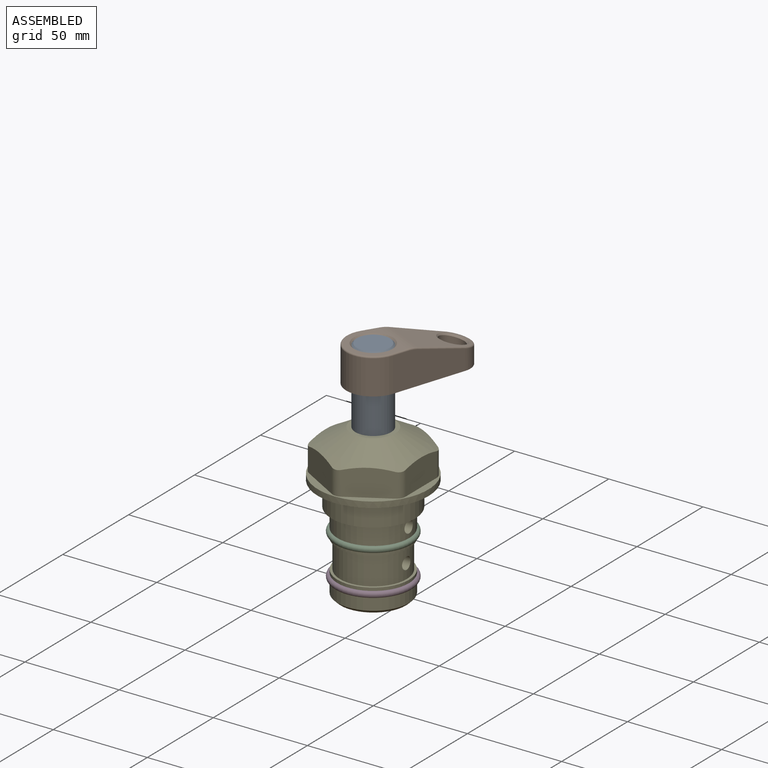
[diagram: assembled view]
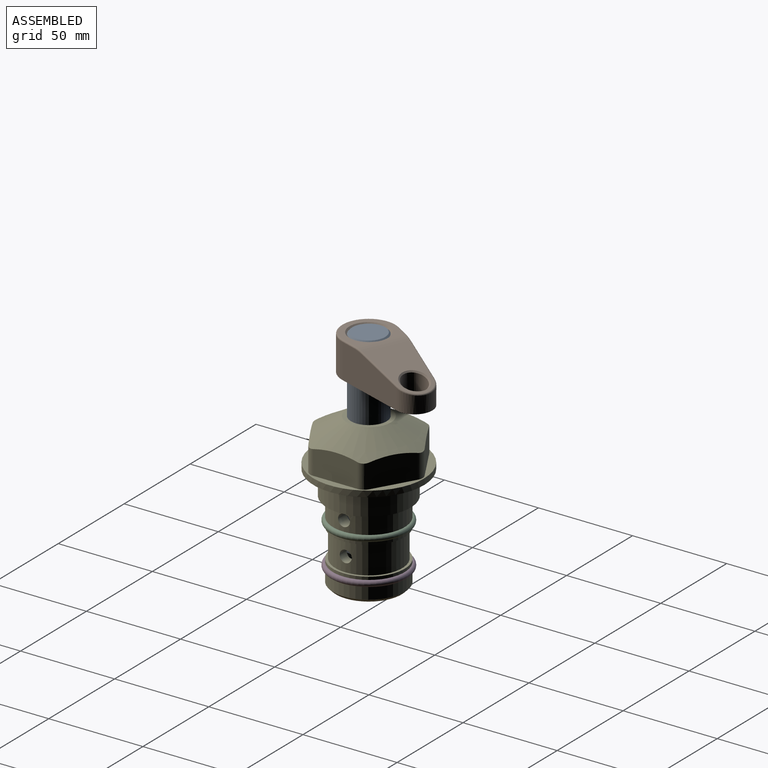
[diagram: assembled view, second angle]
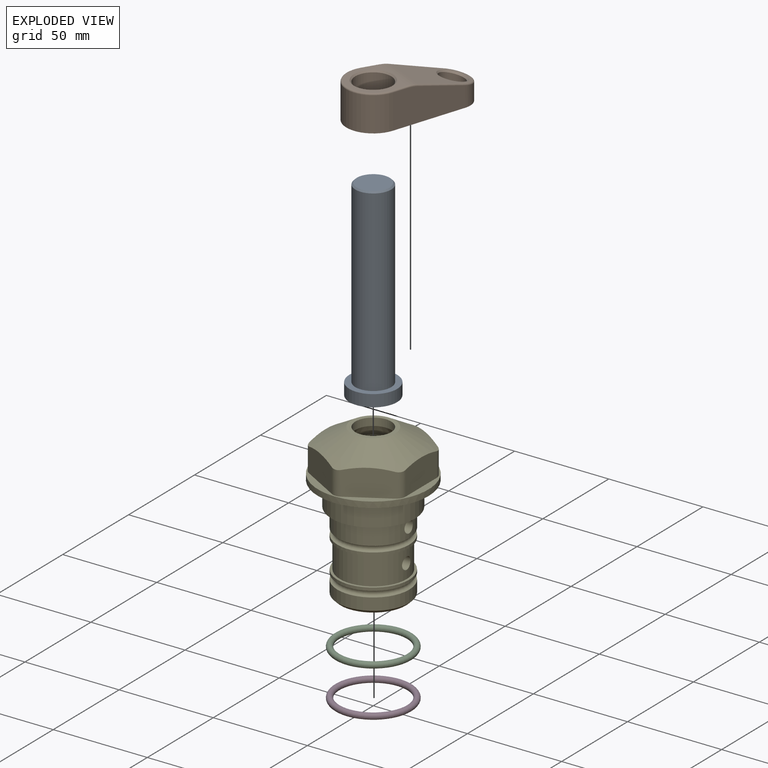
[diagram: exploded view]
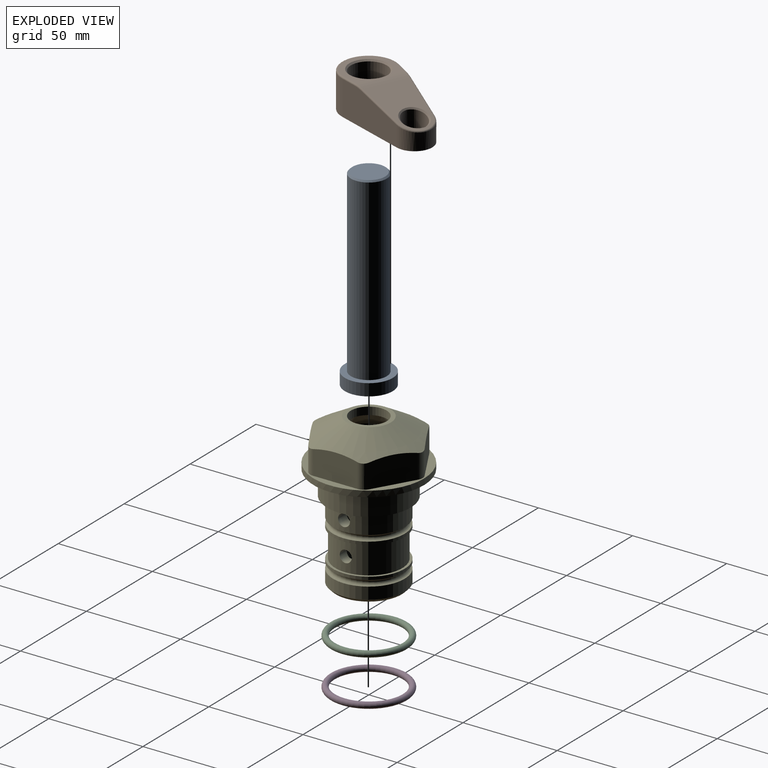
[diagram: exploded view, second angle]
ASSEMBLY  parts=5 mates=4
PART A: 6 faces, bbox 25.4x25.4x102 mm
  f0: plane 25.4x25.4mm, normal (0,0,-1), area 506.7mm2, adj f1
  f1: cylinder r=12.7mm len=25.4mm, axis (0,0,-1), area 506.7mm2, adj f0,f2
  f2: plane 25.4x25.4mm, normal (0,0,1), area 221.7mm2, adj f1,f3
  f3: cylinder r=9.53mm len=94.84mm, axis (0,0,-1), area 5675.8mm2, adj f2,f5
  f4: plane 17.46x17.46mm, normal (0,0,1), area 239.5mm2, adj f5
  f5: cone r=9.53mm half-angle=45deg, axis (0,0,-1), area 64.4mm2, adj f3,f4
PART B: 33 faces, bbox 31.7x65.5x19.8 mm
  f0: plane 63.5x28.58mm, normal (0,0,-1), area 668.8mm2, adj f1,f2,f3,f4,f6,f7,f22,f23
  f1: plane 39.12x18.26mm, normal (-0.99,0.12,0), area 612.2mm2, adj f0,f4,f6,f14,f16,f17
  f2: plane 39.12x18.26mm, normal (0.99,0.12,0), area 612.2mm2, adj f0,f4,f6,f10,f11,f13
  f3: cylinder r=6.35mm len=12.91mm, axis (0,0,-1), area 439.6mm2, adj f0,f18
  f4: cylinder r=9.53mm len=18.91mm, axis (0,0,-1), area 296.1mm2, adj f0,f1,f2,f12
  f5: plane 26.99x23.69mm, normal (0,0,1), area 216.2mm2, adj f9,f13,f15,f17,f19
  f6: cylinder r=14.29mm len=28.58mm, axis (0,0,-1), area 882.2mm2, adj f0,f1,f2,f15
  f7: cylinder r=9.53mm len=19.05mm, axis (0,0,-1), area 1092.6mm2, adj f0,f19,f20
  f8: plane 33.51x23.59mm, normal (0,0.26,0.97), area 485.8mm2, adj f9,f10,f12,f14,f18
  f9: cylinder r=19.05mm len=24.72mm, axis (-1,0,0), area 120.4mm2, adj f5,f8,f11,f16,f20
  f10: cylinder r=0.79mm len=25.95mm, axis (0.12,-0.96,0.26), area 32.9mm2, adj f2,f8,f11,f12
  f11: bspline ~4.95x1.42mm, area 6.1mm2, adj f2,f9,f10,f13
  f12: bspline ~18.91x8.38mm, area 30mm2, adj f4,f8,f10,f14
  f13: cylinder r=0.79mm len=8.67mm, axis (0.12,-0.99,0), area 10.8mm2, adj f2,f5,f11,f15
  f14: cylinder r=0.79mm len=25.95mm, axis (0.12,0.96,-0.26), area 32.9mm2, adj f1,f8,f12,f16
  f15: torus R=13.49mm, axis (0,0,1), area 59mm2, adj f5,f6,f13,f17
  f16: bspline ~4.95x1.42mm, area 6.1mm2, adj f1,f9,f14,f17
  f17: cylinder r=0.79mm len=8.67mm, axis (0.12,0.99,0), area 10.8mm2, adj f1,f5,f15,f16
  f18: bspline ~14.29x14.29mm, area 48.3mm2, adj f3,f8
  f19: cone r=9.53mm half-angle=45deg, axis (0,0,1), area 66.5mm2, adj f5,f7,f20
  f20: bspline ~3.22x0.96mm, area 3.5mm2, adj f7,f9,f19
  f21: plane 0.89x0.06mm, normal (0,0,-1), area 0mm2, adj f28,f32
  f22: plane 18.58x15.78mm, normal (0.99,-0.12,0), area 252.2mm2, adj f0,f27,f28,f30,f32
  f23: plane 18.58x15.78mm, normal (-0.99,-0.12,0), area 252.2mm2, adj f0,f27,f28,f29,f31
  f24: cylinder r=9.53mm len=10.69mm, axis (0,0,-1), area 114.7mm2, adj f0,f27,f29,f30
  f25: plane 0.89x0.06mm, normal (0,0,-1), area 0mm2, adj f28,f31
  f26: cylinder r=12.7mm len=15.87mm, axis (0,0,-1), area 245.7mm2, adj f0,f28,f31,f32
  f27: plane 19.72x18.37mm, normal (0,-0.26,-0.97), area 291.8mm2, adj f22,f23,f24,f28,f29,f30
  f28: cylinder r=15.88mm len=19.53mm, axis (-1,0,0), area 53.5mm2, adj f21,f22,f23,f25,f26,f27,f31,f32
  f29: cylinder r=1.59mm len=11mm, axis (0,0,-1), area 34.7mm2, adj f0,f23,f24,f27
  f30: cylinder r=1.59mm len=11mm, axis (0,0,-1), area 34.7mm2, adj f0,f22,f24,f27
  f31: cylinder r=1.59mm len=15.88mm, axis (0,0,-1), area 57.9mm2, adj f0,f23,f25,f26,f28
  f32: cylinder r=1.59mm len=15.88mm, axis (0,0,-1), area 57.9mm2, adj f0,f21,f22,f26,f28
PART C: 1 faces, bbox 44.7x44.7x3.2 mm
  f0: torus R=19.05mm, axis (0,0,1), area 1193.9mm2
PART D: same geometry as C
PART E: 36 faces, bbox 58.7x58.7x81 mm
  f0: cylinder r=3.17mm len=6.35mm, axis (-1,0,0), area 105.3mm2, adj f2,f33
  f1: cylinder r=3.17mm len=6.75mm, axis (-1,0,0), area 130.7mm2, adj f3,f33
  f2: cylinder r=17.78mm len=35.56mm, axis (0,0,1), area 1670.8mm2, adj f0,f23,f24
  f3: cylinder r=19.05mm len=38.1mm, axis (0,0,1), area 1191.9mm2, adj f1,f26,f27
  f4: plane 23.48x14.34mm, normal (-1,0,0), area 324.4mm2, adj f11,f13,f18,f19
  f5: plane 20.32x14.34mm, normal (-0.5,-0.87,0), area 324.4mm2, adj f11,f13,f14,f19
  f6: plane 20.32x14.34mm, normal (0.5,-0.87,0), area 324.4mm2, adj f11,f14,f15,f19
  f7: plane 23.48x14.34mm, normal (1,0,0), area 324.4mm2, adj f11,f15,f16,f19
  f8: plane 20.32x14.34mm, normal (0.5,0.87,0), area 324.4mm2, adj f11,f16,f17,f19
  f9: plane 20.32x14.34mm, normal (-0.5,0.87,0), area 324.4mm2, adj f11,f17,f18,f19
  f10: cylinder r=29.33mm len=58.66mm, axis (0,0,-1), area 585.1mm2, adj f11,f12
  f11: plane 58.66x58.66mm, normal (0,0,1), area 475.9mm2, adj f4,f5,f6,f7,f8,f9,f10,f13
  f12: plane 58.66x58.66mm, normal (0,0,-1), area 1150.6mm2, adj f10,f28
  f13: cylinder r=5.08mm len=12.85mm, axis (0,0,-1), area 67.2mm2, adj f4,f5,f11,f19
  f14: cylinder r=5.08mm len=12.85mm, axis (0,0,-1), area 67.2mm2, adj f5,f6,f11,f19
  f15: cylinder r=5.08mm len=12.85mm, axis (0,0,-1), area 67.2mm2, adj f6,f7,f11,f19
  f16: cylinder r=5.08mm len=12.85mm, axis (0,0,-1), area 67.2mm2, adj f7,f8,f11,f19
  f17: cylinder r=5.08mm len=12.85mm, axis (0,0,-1), area 67.2mm2, adj f8,f9,f11,f19
  f18: cylinder r=5.08mm len=12.85mm, axis (0,0,-1), area 67.2mm2, adj f4,f9,f11,f19
  f19: cone r=11.73mm half-angle=60deg, axis (0,0,-1), area 2071.7mm2, adj f4,f5,f6,f7,f8,f9,f13,f14
  f20: plane 23.46x23.46mm, normal (0,0,1), area 147.4mm2, adj f19,f35
  f21: torus R=19.05mm, axis (0,0,1), area 565.3mm2, adj f22,f30
  f22: cylinder r=19.05mm len=38.1mm, axis (0,0,1), area 190mm2, adj f21,f23
  f23: plane 38.1x38.1mm, normal (0,0,1), area 146.9mm2, adj f2,f22
  f24: plane 38.1x38.1mm, normal (0,0,-1), area 146.9mm2, adj f2,f25
  f25: cylinder r=19.05mm len=38.1mm, axis (0,0,1), area 190mm2, adj f24,f26
  f26: torus R=19.05mm, axis (0,0,1), area 565.3mm2, adj f3,f25
  f27: plane 44.45x44.45mm, normal (0,0,-1), area 411.7mm2, adj f3,f28
  f28: cylinder r=22.23mm len=44.45mm, axis (0,0,1), area 1773.5mm2, adj f12,f27
  f29: plane 34.93x34.93mm, normal (0,0,-1), area 958mm2, adj f31
  f30: cylinder r=19.05mm len=38.1mm, axis (0,0,1), area 760.1mm2, adj f21,f31
  f31: cone r=19.05mm half-angle=45deg, axis (0,0,1), area 257.5mm2, adj f29,f30
  f32: plane 25.4x25.4mm, normal (0,0,1), area 506.7mm2, adj f33
  f33: cylinder r=12.7mm len=66.42mm, axis (0,0,1), area 5236.3mm2, adj f0,f1,f32,f34
  f34: cone r=12.7mm half-angle=30deg, axis (0,0,-1), area 443.4mm2, adj f33,f35
  f35: cylinder r=9.53mm len=19.05mm, axis (0,0,1), area 240.9mm2, adj f20,f34
PLACE A rot(axis=(0,0,-1),25deg) t=(0,0,2.13)mm
PLACE B rot(axis=(0,0,-1),25deg) t=(0,0,2.13)mm
PLACE C at identity
PLACE D t=(0,0,-21.59)mm
PLACE E at identity fixed
MATE fastened C.f0 <-> E.f2  axis (0,0,1) through (0,0,-24.51)mm
MATE fastened D.f0 <-> E.f2  axis (0,0,1) through (0,0,-46.1)mm
MATE fastened B.f7 <-> A.f1  axis (0,0,1) through (0,0,65.63)mm
MATE cylindrical E.f2 <-> A.f1  axis (0,0,1) through (0,0,-50.55)mm
